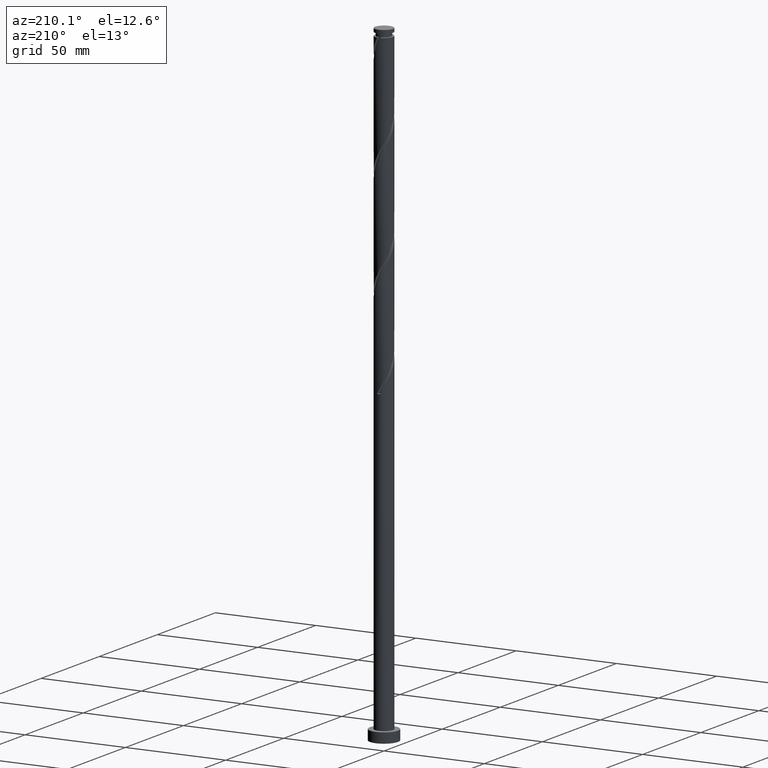
[diagram: clean part render]
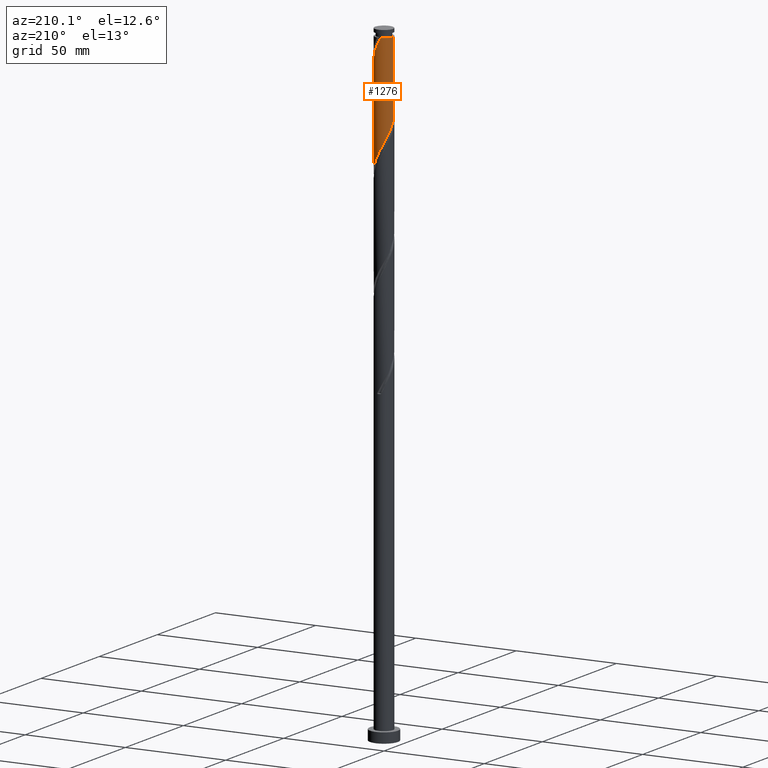
[diagram: same view with one face highlighted and labeled with its STEP entity id]
A machine part, auxiliary view. The second image highlights one B-rep face of the part: STEP entity #1276.
In plain terms, the highlighted cylindrical surface (edge-blend (fillet) strip) has radius 4.5 mm, axis along (-0, -0, -1).
Its self-contained STEP definition (entity closure, byte-faithful):
#53 = VERTEX_POINT ( 'NONE', #1716 ) ;
#60 = CARTESIAN_POINT ( 'NONE',  ( -2.049468773505891406, 4.006204905696194807, 264.6321435053400819 ) ) ;
#86 = CARTESIAN_POINT ( 'NONE',  ( -0.1082803965123941004, 4.498697073123629764, 260.8821435053400819 ) ) ;
#96 = CARTESIAN_POINT ( 'NONE',  ( 3.775285233751811464, 2.500859658072927871, 252.4446435053400819 ) ) ;
#148 = DIRECTION ( 'NONE',  ( -0.000000000000000000, -0.000000000000000000, -1.000000000000000000 ) ) ;
#149 = LINE ( 'NONE', #1438, #1192 ) ;
#189 = CARTESIAN_POINT ( 'NONE',  ( -0.8954886933959841366, 4.410000000000002807, 311.5071435053401387 ) ) ;
#213 = CARTESIAN_POINT ( 'NONE',  ( -3.891231568372337968, 2.316332123609147420, 269.3196435053400819 ) ) ;
#214 = VERTEX_POINT ( 'NONE', #1188 ) ;
#222 = CARTESIAN_POINT ( 'NONE',  ( -4.499999999999998224, -5.179243411969589551E-15, 273.8066605832460709 ) ) ;
#252 = CARTESIAN_POINT ( 'NONE',  ( 2.500859658072934089, 3.775285233751815017, 304.9446435053400819 ) ) ;
#261 = AXIS2_PLACEMENT_3D ( 'NONE', #1015, #1592, #1603 ) ;
#273 = CARTESIAN_POINT ( 'NONE',  ( 0.000000000000000000, 0.000000000000000000, 311.5071435053400251 ) ) ;
#274 = DIRECTION ( 'NONE',  ( -0.000000000000000000, -0.000000000000000000, -1.000000000000000000 ) ) ;
#283 = CARTESIAN_POINT ( 'NONE',  ( -0.3986010284364690515, 4.510897343732239051, 310.5696435053401387 ) ) ;
#299 =( BOUNDED_CURVE ( )  B_SPLINE_CURVE ( 2, ( #222, #1104, #1265, #1553, #1427, #213, #964, #834, #516, #981, #60, #1577, #368, #1272, #86, #1723, #1543, #682, #1732, #1419, #1284, #948, #1134, #96, #809, #956, #659, #1396, #382, #1707, #1868 ),
 .UNSPECIFIED., .F., .T. ) 
 B_SPLINE_CURVE_WITH_KNOTS ( ( 3, 2, 2, 2, 2, 2, 2, 2, 2, 2, 2, 2, 2, 2, 2, 3 ),
 ( 0.4295303401299220836, 0.4375000000000000000, 0.4464285714285714524, 0.4553571428571428492, 0.4642857142857143016, 0.4732142857142856984, 0.4821428571428571508, 0.4910714285714285476, 0.5000000000000000000, 0.5089285714285713969, 0.5178571428571429047, 0.5267857142857143016, 0.5357142857142856984, 0.5446428571428570953, 0.5535714285714286031, 0.5545303401299221946 ),
 .UNSPECIFIED. ) 
 CURVE ( )  GEOMETRIC_REPRESENTATION_ITEM ( )  RATIONAL_B_SPLINE_CURVE ( ( 0.9079949616362011922, 0.9039886423360643519, 0.9090909090909310430, 0.9033747362666060265, 0.9090909090909310430, 0.9033747362666060265, 0.9090909090909310430, 0.9033747362666060265, 0.9090909090909310430, 0.9033747362666060265, 0.9090909090909310430, 0.9033747362666060265, 0.9090909090909310430, 0.9033747362666060265, 0.9090909090909310430, 0.9033747362666060265, 0.9090909090909310430, 0.9033747362666060265, 0.9090909090909310430, 0.9033747362666060265, 0.9090909090909310430, 0.9033747362666060265, 0.9090909090909310430, 0.9033747362666060265, 0.9090909090909310430, 0.9033747362666060265, 0.9090909090909310430, 0.9033747362666060265, 0.9090909090909310430, 0.9084770030214727177, 0.9079949616362010811 ) ) 
 REPRESENTATION_ITEM ( '' )  );
#300 = VERTEX_POINT ( 'NONE', #619 ) ;
#320 = ORIENTED_EDGE ( 'NONE', *, *, #1624, .F. ) ;
#368 = CARTESIAN_POINT ( 'NONE',  ( -1.106619855200056346, 4.361810690077804864, 262.7571435053400251 ) ) ;
#382 = CARTESIAN_POINT ( 'NONE',  ( 4.498697073123629764, 0.1082803965123932677, 247.7571435053400535 ) ) ;
#396 = DIRECTION ( 'NONE',  ( -0.000000000000000000, -0.000000000000000000, -1.000000000000000000 ) ) ;
#410 = CARTESIAN_POINT ( 'NONE',  ( 4.100167112320058926, 1.854354240982299729, 300.2571435053400819 ) ) ;
#502 =( BOUNDED_CURVE ( )  B_SPLINE_CURVE ( 2, ( #1616, #1896, #738, #1607, #410, #1312, #989, #1907, #1293, #252, #1167, #1763, #1020, #843, #700, #283, #1918 ),
 .UNSPECIFIED., .F., .T. ) 
 B_SPLINE_CURVE_WITH_KNOTS ( ( 3, 2, 2, 2, 2, 2, 2, 2, 3 ),
 ( 0.6795303401299218615, 0.6875000000000000000, 0.6964285714285713969, 0.7053571428571427937, 0.7142857142857143016, 0.7232142857142856984, 0.7321428571428572063, 0.7410714285714286031, 0.7500000000000000000 ),
 .UNSPECIFIED. ) 
 CURVE ( )  GEOMETRIC_REPRESENTATION_ITEM ( )  RATIONAL_B_SPLINE_CURVE ( ( 0.9079949616362078535, 0.9039886423360706802, 0.9090909090909374823, 0.9033747362666124658, 0.9090909090909374823, 0.9033747362666124658, 0.9090909090909374823, 0.9033747362666124658, 0.9090909090909374823, 0.9033747362666124658, 0.9090909090909374823, 0.9033747362666124658, 0.9090909090909374823, 0.9033747362666124658, 0.9090909090909374823, 0.9033747362666124658, 0.9090909090909374823 ) ) 
 REPRESENTATION_ITEM ( '' )  );
#516 = CARTESIAN_POINT ( 'NONE',  ( -2.889548769671827610, 3.449711278888136778, 266.5071435053400251 ) ) ;
#619 = CARTESIAN_POINT ( 'NONE',  ( -4.499999999999998224, -5.179243411969589551E-15, 273.8066605832460709 ) ) ;
#622 = ORIENTED_EDGE ( 'NONE', *, *, #1922, .F. ) ;
#632 = VERTEX_POINT ( 'NONE', #1927 ) ;
#643 = ORIENTED_EDGE ( 'NONE', *, *, #1909, .T. ) ;
#659 = CARTESIAN_POINT ( 'NONE',  ( 4.361810690077805752, 1.106619855200055680, 249.6321435053400535 ) ) ;
#682 = CARTESIAN_POINT ( 'NONE',  ( 1.392376358355450261, 4.309102656267766562, 258.0696435053400819 ) ) ;
#700 = CARTESIAN_POINT ( 'NONE',  ( 0.1082803965123961543, 4.498697073123635981, 309.6321435053400819 ) ) ;
#738 = CARTESIAN_POINT ( 'NONE',  ( 4.410000000000006359, 0.8954886933959596007, 298.3821435053399682 ) ) ;
#742 = ORIENTED_EDGE ( 'NONE', *, *, #755, .T. ) ;
#755 = EDGE_CURVE ( 'NONE', #53, #868, #1501, .T. ) ;
#809 = CARTESIAN_POINT ( 'NONE',  ( 4.006204905696194807, 2.049468773505890962, 251.5071435053401103 ) ) ;
#834 = CARTESIAN_POINT ( 'NONE',  ( -3.278237881270725573, 3.124137324024463425, 267.4446435053400251 ) ) ;
#843 = CARTESIAN_POINT ( 'NONE',  ( 0.6151618214612609714, 4.486496802515032911, 308.6946435053399682 ) ) ;
#858 = LINE ( 'NONE', #1738, #1693 ) ;
#868 = VERTEX_POINT ( 'NONE', #189 ) ;
#948 = CARTESIAN_POINT ( 'NONE',  ( 3.124137324024464313, 3.278237881270724241, 254.3196435053400251 ) ) ;
#956 = CARTESIAN_POINT ( 'NONE',  ( 4.237124577640575929, 1.598077888938854052, 250.5696435053401103 ) ) ;
#964 = CARTESIAN_POINT ( 'NONE',  ( -3.584734724821531326, 2.720234723816805200, 268.3821435053401387 ) ) ;
#981 = CARTESIAN_POINT ( 'NONE',  ( -2.500859658072928760, 3.775285233751811020, 265.5696435053400819 ) ) ;
#989 = CARTESIAN_POINT ( 'NONE',  ( 3.584734724821537988, 2.720234723816808753, 302.1321435053401387 ) ) ;
#1015 = CARTESIAN_POINT ( 'NONE',  ( 0.000000000000000000, 0.000000000000000000, 315.0000000000000000 ) ) ;
#1020 = CARTESIAN_POINT ( 'NONE',  ( 1.106619855200059899, 4.361810690077811081, 307.7571435053400251 ) ) ;
#1045 = ORIENTED_EDGE ( 'NONE', *, *, #1244, .F. ) ;
#1104 = CARTESIAN_POINT ( 'NONE',  ( -4.499999999999999112, 0.4522670168666501067, 272.9683895042824702 ) ) ;
#1134 = CARTESIAN_POINT ( 'NONE',  ( 3.449711278888136778, 2.889548769671827166, 253.3821435053401103 ) ) ;
#1167 = CARTESIAN_POINT ( 'NONE',  ( 2.049468773505896735, 4.006204905696198360, 305.8821435053400251 ) ) ;
#1186 = DIRECTION ( 'NONE',  ( -1.000000000000000000, 0.000000000000000000, 0.000000000000000000 ) ) ;
#1188 = CARTESIAN_POINT ( 'NONE',  ( 4.500000000000006217, -8.582319774877502558E-16, 296.7076264274339792 ) ) ;
#1192 = VECTOR ( 'NONE', #274, 1000.000000000000000 ) ;
#1244 = EDGE_CURVE ( 'NONE', #53, #300, #858, .T. ) ;
#1265 = CARTESIAN_POINT ( 'NONE',  ( -4.410000000000000142, 0.8954886933959599338, 272.1321435053400251 ) ) ;
#1272 = CARTESIAN_POINT ( 'NONE',  ( -0.6151618214612581959, 4.486496802515027582, 261.8196435053400251 ) ) ;
#1276 = ADVANCED_FACE ( 'NONE', ( #1464 ), #1903, .T. ) ;
#1284 = CARTESIAN_POINT ( 'NONE',  ( 2.720234723816806532, 3.584734724821531326, 255.2571435053400535 ) ) ;
#1293 = CARTESIAN_POINT ( 'NONE',  ( 2.889548769671832940, 3.449711278888141219, 304.0071435053399114 ) ) ;
#1312 = CARTESIAN_POINT ( 'NONE',  ( 3.891231568372342853, 2.316332123609148752, 301.1946435053399682 ) ) ;
#1396 = CARTESIAN_POINT ( 'NONE',  ( 4.486496802515027582, 0.6151618214612573077, 248.6946435053400535 ) ) ;
#1419 = CARTESIAN_POINT ( 'NONE',  ( 2.316332123609147864, 3.891231568372337968, 256.1946435053400251 ) ) ;
#1427 = CARTESIAN_POINT ( 'NONE',  ( -4.100167112320052709, 1.854354240982298840, 270.2571435053400251 ) ) ;
#1438 = CARTESIAN_POINT ( 'NONE',  ( 4.500000000000000000, 5.510910596163088569E-16, 315.0000000000000000 ) ) ;
#1464 = FACE_OUTER_BOUND ( 'NONE', #1692, .T. ) ;
#1501 = CIRCLE ( 'NONE', #1751, 4.499999999999974243 ) ;
#1543 = CARTESIAN_POINT ( 'NONE',  ( 0.8954886933959607109, 4.410000000000000142, 259.0071435053400251 ) ) ;
#1553 = CARTESIAN_POINT ( 'NONE',  ( -4.309102656267766562, 1.392376358355449817, 271.1946435053400819 ) ) ;
#1577 = CARTESIAN_POINT ( 'NONE',  ( -1.598077888938855162, 4.237124577640576817, 263.6946435053400819 ) ) ;
#1592 = DIRECTION ( 'NONE',  ( -0.000000000000000000, -0.000000000000000000, -1.000000000000000000 ) ) ;
#1603 = DIRECTION ( 'NONE',  ( -1.000000000000000000, 0.000000000000000000, 0.000000000000000000 ) ) ;
#1607 = CARTESIAN_POINT ( 'NONE',  ( 4.309102656267771891, 1.392376358355450039, 299.3196435053400251 ) ) ;
#1616 = CARTESIAN_POINT ( 'NONE',  ( 4.500000000000006217, -8.582319774877502558E-16, 296.7076264274340360 ) ) ;
#1624 = EDGE_CURVE ( 'NONE', #300, #632, #299, .T. ) ;
#1692 = EDGE_LOOP ( 'NONE', ( #622, #643, #320, #1045, #742 ) ) ;
#1693 = VECTOR ( 'NONE', #396, 1000.000000000000000 ) ;
#1707 = CARTESIAN_POINT ( 'NONE',  ( 4.500000000000000000, 0.05414803724874861501, 247.6570232714711892 ) ) ;
#1716 = CARTESIAN_POINT ( 'NONE',  ( -4.499999999999974243, 0.000000000000000000, 311.5071435053400251 ) ) ;
#1723 = CARTESIAN_POINT ( 'NONE',  ( 0.3986010284364700507, 4.510897343732231946, 259.9446435053400251 ) ) ;
#1732 = CARTESIAN_POINT ( 'NONE',  ( 1.854354240982299507, 4.100167112320051821, 257.1321435053400819 ) ) ;
#1738 = CARTESIAN_POINT ( 'NONE',  ( -4.500000000000000000, 0.000000000000000000, 315.0000000000000000 ) ) ;
#1751 = AXIS2_PLACEMENT_3D ( 'NONE', #273, #148, #1186 ) ;
#1763 = CARTESIAN_POINT ( 'NONE',  ( 1.598077888938858493, 4.237124577640583034, 306.8196435053400251 ) ) ;
#1868 = CARTESIAN_POINT ( 'NONE',  ( 4.499999999999998224, -2.209014481185876808E-15, 247.5566605832460425 ) ) ;
#1896 = CARTESIAN_POINT ( 'NONE',  ( 4.500000000000008882, 0.4522670168666337864, 297.5458975063975799 ) ) ;
#1903 = CYLINDRICAL_SURFACE ( 'NONE', #261, 4.500000000000000000 ) ;
#1907 = CARTESIAN_POINT ( 'NONE',  ( 3.278237881270730458, 3.124137324024466089, 303.0696435053400819 ) ) ;
#1909 = EDGE_CURVE ( 'NONE', #214, #632, #149, .T. ) ;
#1918 = CARTESIAN_POINT ( 'NONE',  ( -0.8954886933959840256, 4.410000000000002807, 311.5071435053401387 ) ) ;
#1922 = EDGE_CURVE ( 'NONE', #214, #868, #502, .T. ) ;
#1927 = CARTESIAN_POINT ( 'NONE',  ( 4.499999999999999112, -2.209014481185876808E-15, 247.5566605832460709 ) ) ;